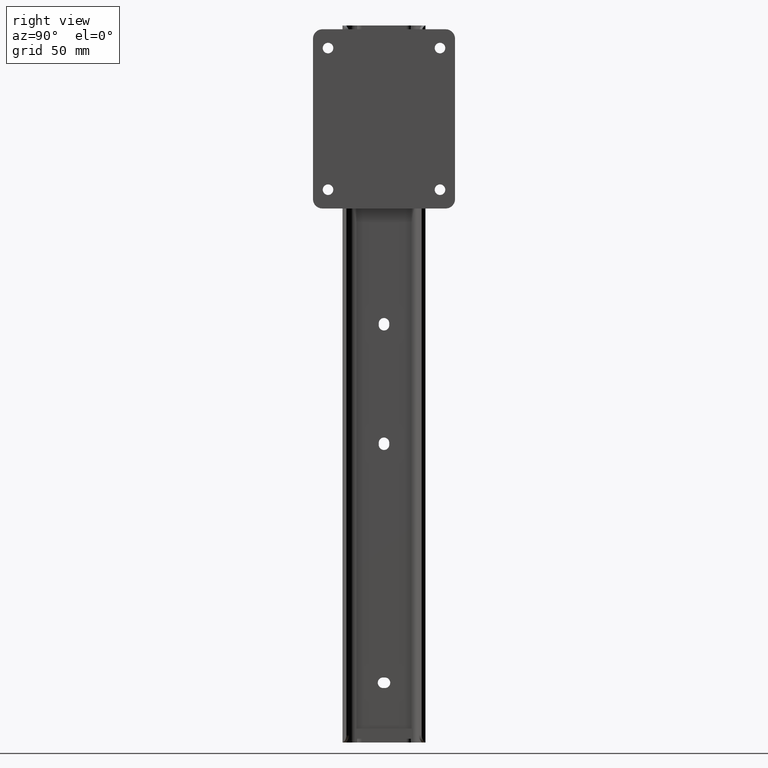
[diagram: clean part render]
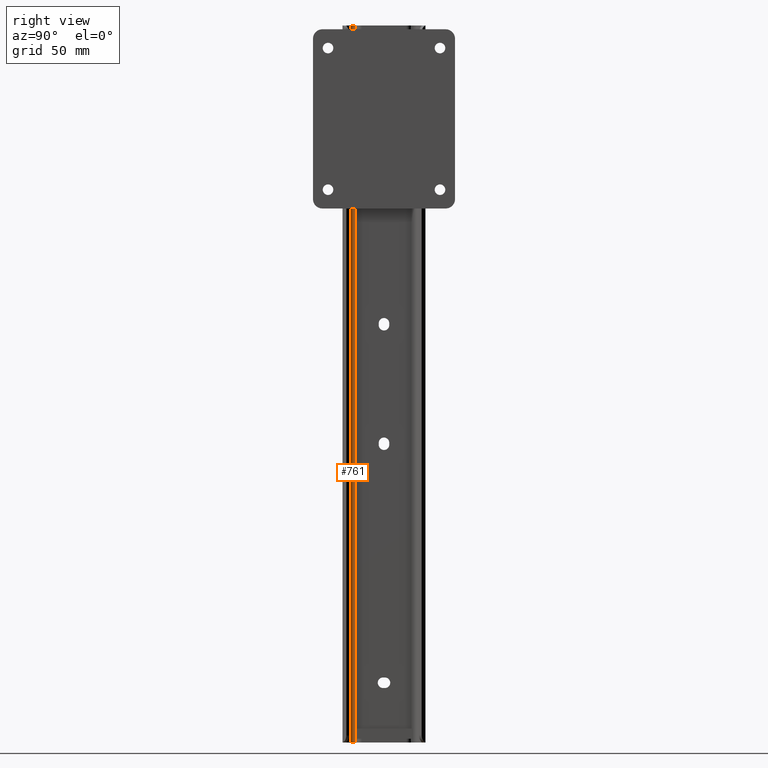
[diagram: same view with one face highlighted and labeled with its STEP entity id]
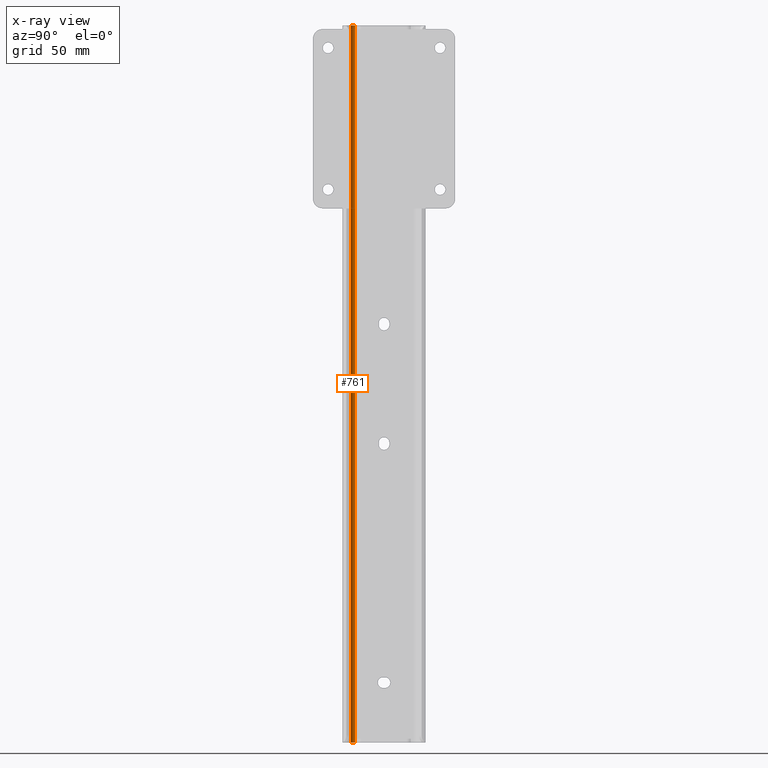
[diagram: x-ray of the same camera — body ghosted, the highlighted face saturated]
A machine part, right view. The second image highlights one B-rep face of the part: STEP entity #761.
The next image is the same camera in x-ray: the body ghosted, the highlighted face saturated — about 0% of this face is hidden behind the body in this view.
In plain terms, the highlighted cylindrical surface (edge-blend (fillet) strip) has radius 2.4 mm, axis along (0, 0, 1).
Its self-contained STEP definition (entity closure, byte-faithful):
#22 = AXIS2_PLACEMENT_3D ( 'NONE', #1650, #482, #3104 ) ;
#101 = EDGE_CURVE ( 'NONE', #508, #1888, #752, .T. ) ;
#157 = CARTESIAN_POINT ( 'NONE',  ( 4.000000000000069278, -12.34171572921506232, -304.8000000000000114 ) ) ;
#216 = EDGE_LOOP ( 'NONE', ( #2736, #615, #1013, #329 ) ) ;
#276 = DIRECTION ( 'NONE',  ( 1.000000000000000000, 0.0000000000000000000, 0.0000000000000000000 ) ) ;
#323 = CARTESIAN_POINT ( 'NONE',  ( 2.302943725152311494, -14.03877200406277304, 0.0000000000000000000 ) ) ;
#329 = ORIENTED_EDGE ( 'NONE', *, *, #3662, .T. ) ;
#370 = VERTEX_POINT ( 'NONE', #2968 ) ;
#482 = DIRECTION ( 'NONE',  ( -0.0000000000000000000, -0.0000000000000000000, -1.000000000000000000 ) ) ;
#508 = VERTEX_POINT ( 'NONE', #323 ) ;
#615 = ORIENTED_EDGE ( 'NONE', *, *, #2742, .F. ) ;
#700 = CIRCLE ( 'NONE', #1423, 2.400000000000023448 ) ;
#752 = CIRCLE ( 'NONE', #22, 2.400000000000023448 ) ;
#761 = ADVANCED_FACE ( 'NONE', ( #3462 ), #2058, .F. ) ;
#892 = EDGE_CURVE ( 'NONE', #1610, #370, #700, .T. ) ;
#893 = VECTOR ( 'NONE', #1911, 1000.000000000000000 ) ;
#1013 = ORIENTED_EDGE ( 'NONE', *, *, #892, .T. ) ;
#1410 = CARTESIAN_POINT ( 'NONE',  ( 1.600000000000045830, -12.34171572921509075, -304.8000000000000114 ) ) ;
#1423 = AXIS2_PLACEMENT_3D ( 'NONE', #157, #1812, #2955 ) ;
#1610 = VERTEX_POINT ( 'NONE', #3526 ) ;
#1650 = CARTESIAN_POINT ( 'NONE',  ( 4.000000000000069278, -12.34171572921506232, 0.0000000000000000000 ) ) ;
#1812 = DIRECTION ( 'NONE',  ( -0.0000000000000000000, -0.0000000000000000000, -1.000000000000000000 ) ) ;
#1888 = VERTEX_POINT ( 'NONE', #2296 ) ;
#1911 = DIRECTION ( 'NONE',  ( 0.0000000000000000000, 0.0000000000000000000, 1.000000000000000000 ) ) ;
#2009 = LINE ( 'NONE', #1410, #3482 ) ;
#2058 = CYLINDRICAL_SURFACE ( 'NONE', #3701, 2.400000000000023448 ) ;
#2296 = CARTESIAN_POINT ( 'NONE',  ( 1.600000000000045830, -12.34171572921509075, 0.0000000000000000000 ) ) ;
#2736 = ORIENTED_EDGE ( 'NONE', *, *, #101, .F. ) ;
#2742 = EDGE_CURVE ( 'NONE', #1610, #508, #3623, .T. ) ;
#2854 = CARTESIAN_POINT ( 'NONE',  ( 4.000000000000069278, -12.34171572921506232, -304.8000000000000114 ) ) ;
#2877 = DIRECTION ( 'NONE',  ( 0.0000000000000000000, 0.0000000000000000000, 1.000000000000000000 ) ) ;
#2955 = DIRECTION ( 'NONE',  ( 1.000000000000000000, 0.0000000000000000000, 0.0000000000000000000 ) ) ;
#2968 = CARTESIAN_POINT ( 'NONE',  ( 1.600000000000045830, -12.34171572921509075, -304.8000000000000114 ) ) ;
#3075 = CARTESIAN_POINT ( 'NONE',  ( 2.302943725152311494, -14.03877200406277304, -304.8000000000000114 ) ) ;
#3104 = DIRECTION ( 'NONE',  ( 1.000000000000000000, 0.0000000000000000000, 0.0000000000000000000 ) ) ;
#3179 = DIRECTION ( 'NONE',  ( 0.0000000000000000000, 0.0000000000000000000, 1.000000000000000000 ) ) ;
#3462 = FACE_OUTER_BOUND ( 'NONE', #216, .T. ) ;
#3482 = VECTOR ( 'NONE', #3179, 1000.000000000000000 ) ;
#3526 = CARTESIAN_POINT ( 'NONE',  ( 2.302943725152311494, -14.03877200406277304, -304.8000000000000114 ) ) ;
#3623 = LINE ( 'NONE', #3075, #893 ) ;
#3662 = EDGE_CURVE ( 'NONE', #370, #1888, #2009, .T. ) ;
#3701 = AXIS2_PLACEMENT_3D ( 'NONE', #2854, #2877, #276 ) ;